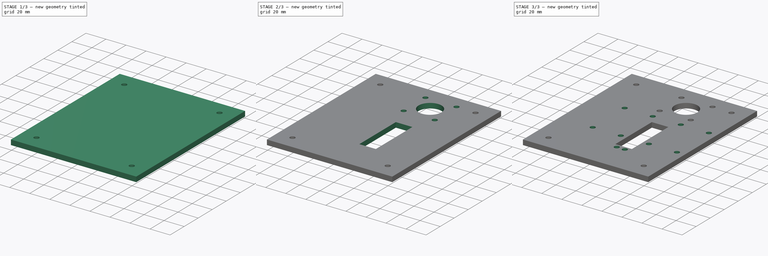
[diagram: build sequence overview — one tinted view per stage of 3, left to right]
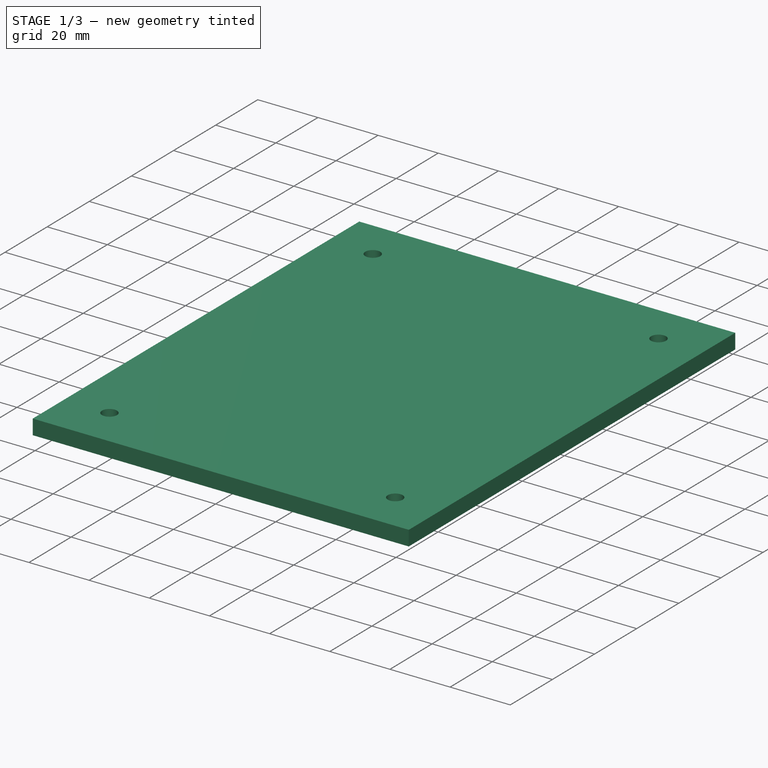
[diagram: stage 1 of 3 — iso view after this stage's code; geometry added in this stage tinted green]
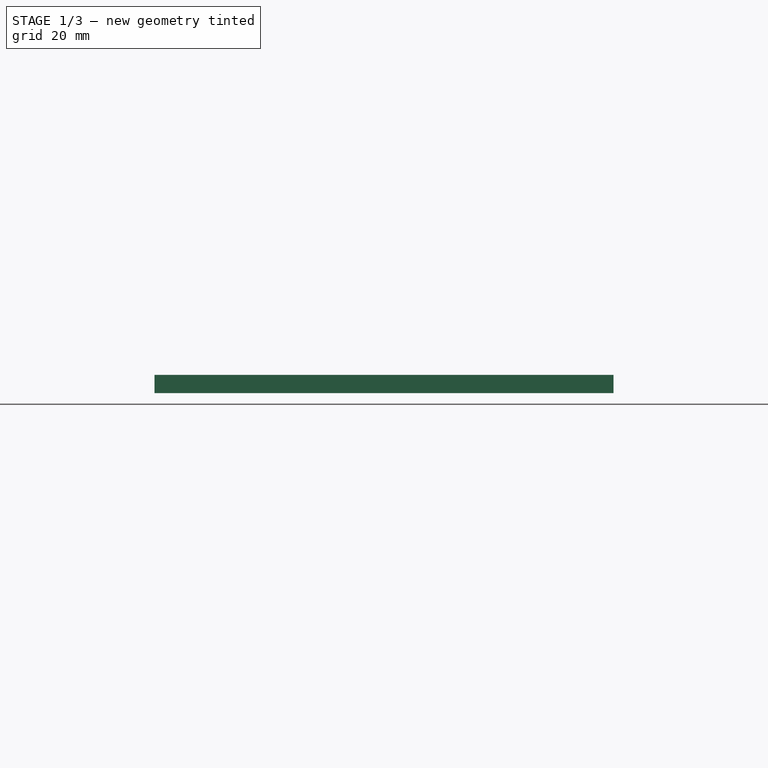
[diagram: stage 1 of 3 — front view after this stage's code; geometry added in this stage tinted green]
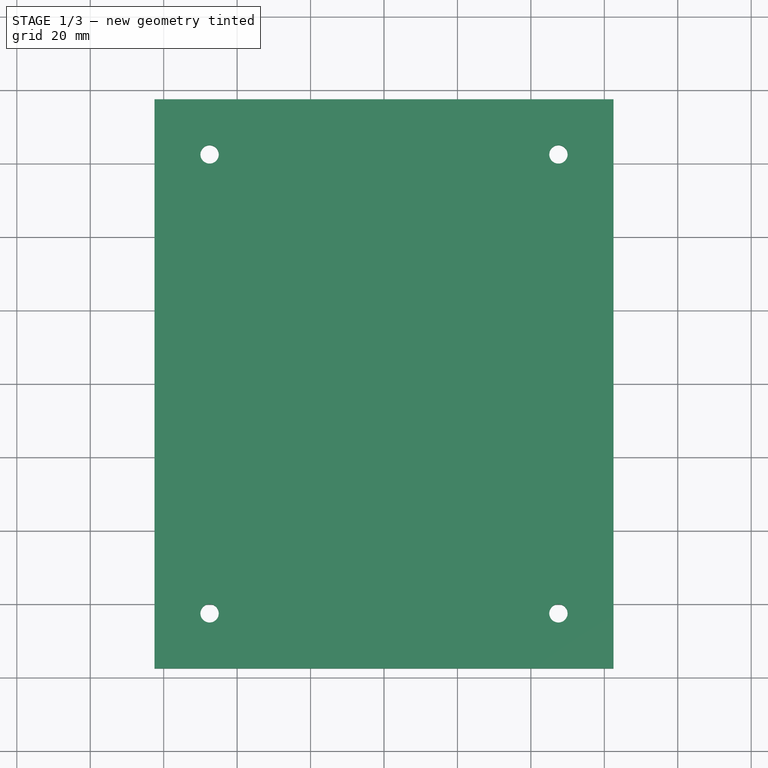
[diagram: stage 1 of 3 — top view after this stage's code; geometry added in this stage tinted green]
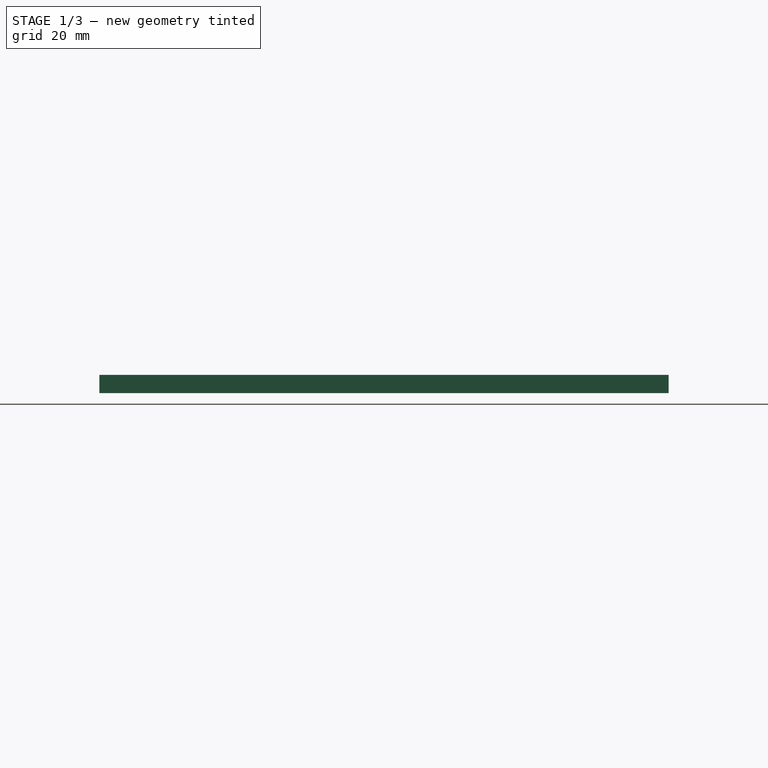
[diagram: stage 1 of 3 — right view after this stage's code; geometry added in this stage tinted green]
FCSTD DOCUMENT  (FreeCAD 0.19R24267 +148 (Git))
Label: PlateOfSupport
License: All rights reserved
LicenseURL: http://en.wikipedia.org/wiki/All_rights_reserved
objects: Sketcher::SketchObject×6, PartDesign::Pocket×5, PartDesign::Pad×1, PartDesign::Body×1
note: 19 computed .brp shape members not serialized (recipe doc carries the construction recipe); baked Part::Feature solids carry a one-line shape summary decoded from their .brp

FEATURE [Sketcher::SketchObject] Sketch
  FullyConstrained = true
  MapMode = 5
  Support = -> [XY_Plane]
  sketch-geometry (4):
    g0: LineSegment StartX=-62.5 StartY=-77.5 StartZ=0 EndX=62.5 EndY=-77.5 EndZ=0
    g1: LineSegment StartX=62.5 StartY=-77.5 StartZ=0 EndX=62.5 EndY=77.5 EndZ=0
    g2: LineSegment StartX=62.5 StartY=77.5 StartZ=0 EndX=-62.5 EndY=77.5 EndZ=0
    g3: LineSegment StartX=-62.5 StartY=77.5 StartZ=0 EndX=-62.5 EndY=-77.5 EndZ=0
  constraints (10):
    c: Coincident(g0,g1)
    c: Coincident(g1,g2)
    c: Coincident(g2,g3)
    c: Coincident(g3,g0)
    c: Horizontal(g0)
    c: Vertical(g3)
    c: Symmetric(g1,g2,g-2)
    c: Symmetric(g0,g1,g-1)
    c: Distance(g0) = 125
    c: Distance(g1) = 155
FEATURE [PartDesign::Pad] Pad
  Direction = (1,1,1)
  Length = 5
  Length2 = 100
  Profile = -> Sketch
  Refine = true
  Type = 0
FEATURE [Sketcher::SketchObject] Sketch001
  ExternalGeometry = -> [Pad]
  FullyConstrained = true
  MapMode = 5
  Placement = pos=(0,0,5) rot=(0,0,1;0rad)
  Support = -> [Pad]
  sketch-geometry (4):
    g0: Circle CenterX=-47.5 CenterY=62.5 CenterZ=0 NormalX=0 NormalY=0 NormalZ=1 AngleXU=0 Radius=2.5
    g1: Circle CenterX=47.5 CenterY=62.5 CenterZ=0 NormalX=0 NormalY=0 NormalZ=1 AngleXU=0 Radius=2.5
    g2: Circle CenterX=-47.5 CenterY=-62.5 CenterZ=0 NormalX=0 NormalY=0 NormalZ=1 AngleXU=0 Radius=2.5
    g3: Circle CenterX=47.5 CenterY=-62.5 CenterZ=0 NormalX=0 NormalY=0 NormalZ=1 AngleXU=0 Radius=2.5
  constraints (9):
    c: Equal(g0,g1)
    c: Equal(g1,g3)
    c: Equal(g3,g2)
    c: Symmetric(g0,g1,g-2)
    c: Symmetric(g1,g3,g-1)
    c: Symmetric(g3,g2,g-2)
    c: Diameter(g2) = 5
    c: DistanceY(g0,g-3) = 15
    c: DistanceX(g-3,g0) = 15
FEATURE [PartDesign::Pocket] Pocket  label="HolesForTry_Square"
  BaseFeature = -> Pad
  Length = 5
  Length2 = 100
  Profile = -> Sketch001
  Refine = true
  Type = 1
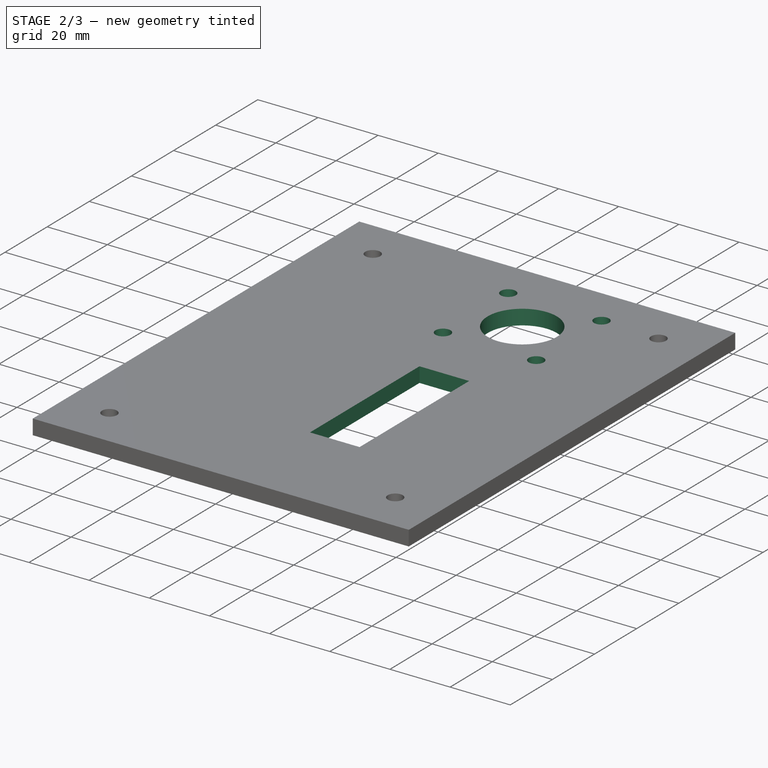
[diagram: stage 2 of 3 — iso view after this stage's code; geometry added in this stage tinted green]
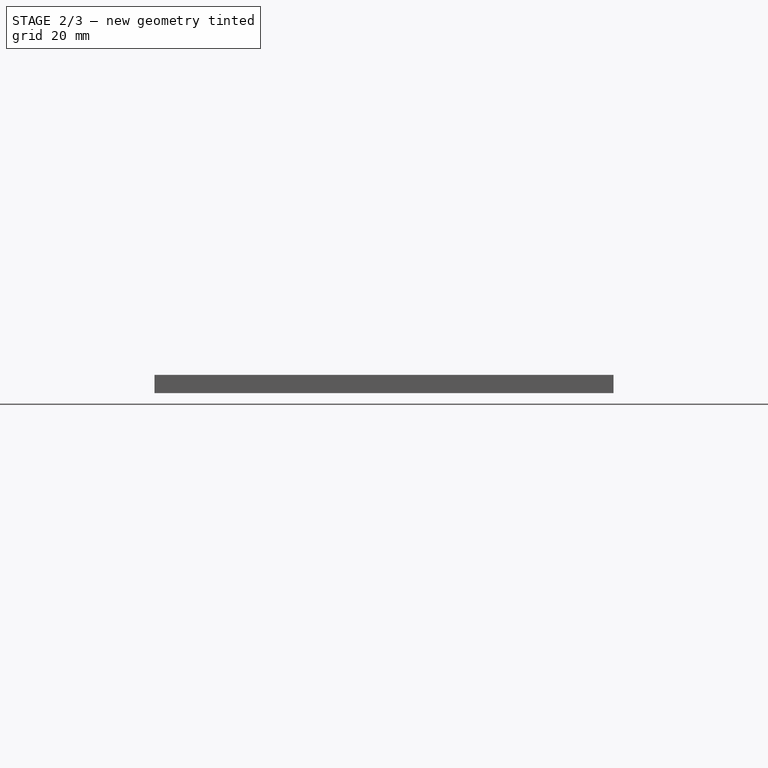
[diagram: stage 2 of 3 — front view after this stage's code; geometry added in this stage tinted green]
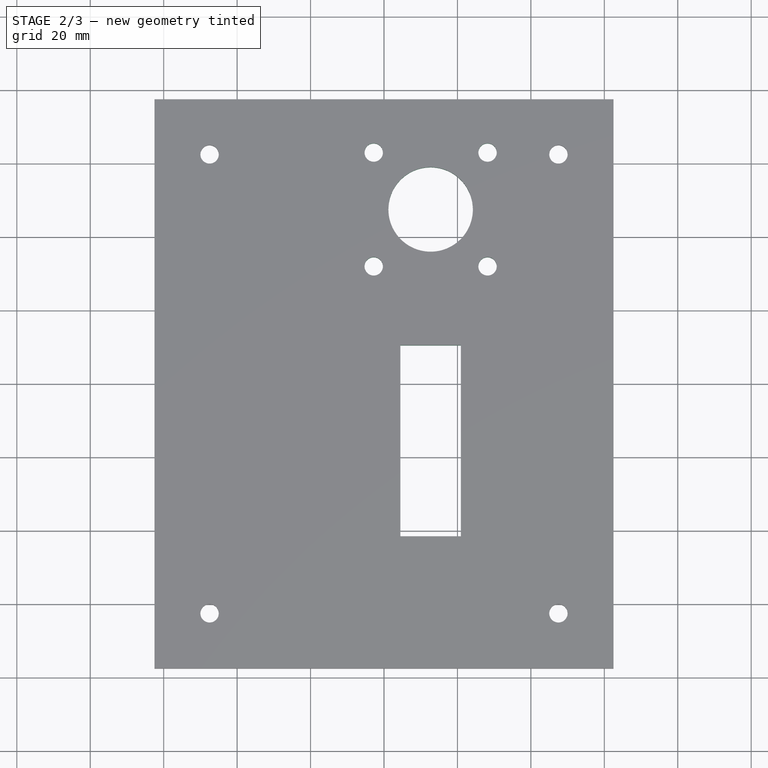
[diagram: stage 2 of 3 — top view after this stage's code; geometry added in this stage tinted green]
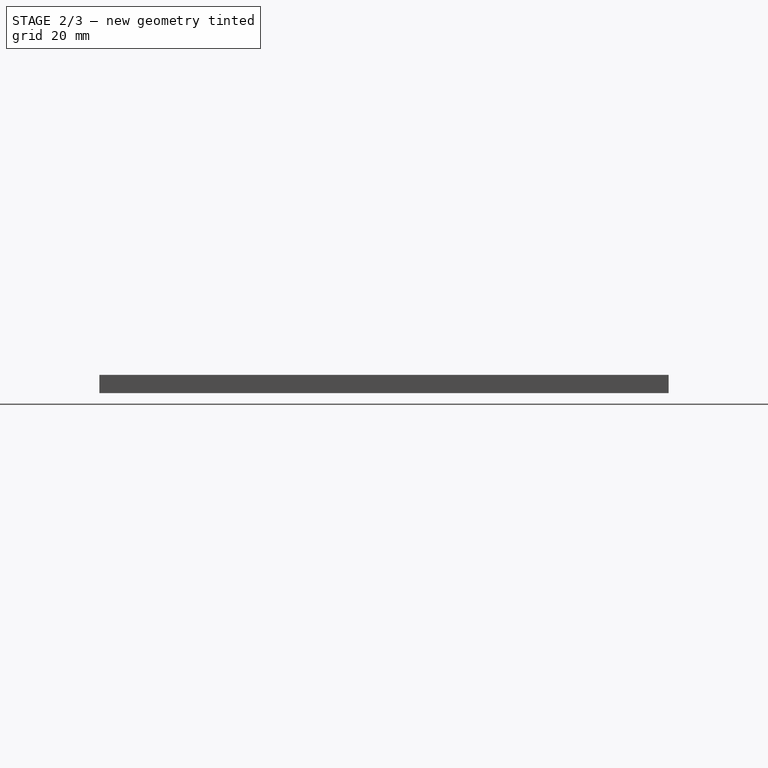
[diagram: stage 2 of 3 — right view after this stage's code; geometry added in this stage tinted green]
FEATURE [Sketcher::SketchObject] Sketch002
  ExternalGeometry = -> [Pocket]
  FullyConstrained = true
  MapMode = 5
  Placement = pos=(0,0,5) rot=(0,0,1;0rad)
  Support = -> [Pocket]
  sketch-geometry (5):
    g0: LineSegment StartX=4.45 StartY=-41.5 StartZ=0 EndX=20.95 EndY=-41.5 EndZ=0
    g1: LineSegment StartX=20.95 StartY=-41.5 StartZ=0 EndX=20.95 EndY=10.5 EndZ=0
    g2: LineSegment StartX=20.95 StartY=10.5 StartZ=0 EndX=4.45 EndY=10.5 EndZ=0
    g3: LineSegment StartX=4.45 StartY=10.5 StartZ=0 EndX=4.45 EndY=-41.5 EndZ=0
    g4: LineSegment StartX=12.7 StartY=10.5 StartZ=0 EndX=12.7 EndY=-41.5 EndZ=0
  constraints (15):
    c: Coincident(g0,g1)
    c: Coincident(g1,g2)
    c: Coincident(g2,g3)
    c: Coincident(g3,g0)
    c: Horizontal(g0)
    c: Horizontal(g2)
    c: Vertical(g1)
    c: Vertical(g3)
    c: PointOnObject(g4,g2)
    c: PointOnObject(g4,g0)
    c: Symmetric(g1,g2,g4)
    c: Distance(g1) = 52
    c: Distance(g2) = 16.5
    c: DistanceX(g4,g-3) = 49.8
    c: DistanceY(g2,g-4) = 67
FEATURE [PartDesign::Pocket] Pocket001  label="PocketForCutting_Blade"
  BaseFeature = -> Pocket
  Length = 5
  Length2 = 100
  Profile = -> Sketch002
  Refine = true
  Type = 1
FEATURE [Sketcher::SketchObject] Sketch003
  ExternalGeometry = -> [Pocket001]
  FullyConstrained = true
  MapMode = 5
  Placement = pos=(0,0,5) rot=(0,0,1;0rad)
  Support = -> [Pocket001]
  sketch-geometry (7):
    g0: Circle CenterX=12.7 CenterY=47.5 CenterZ=0 NormalX=0 NormalY=0 NormalZ=1 AngleXU=0 Radius=11.5
    g1: LineSegment StartX=12.7 StartY=59 StartZ=0 EndX=12.7 EndY=36 EndZ=0
    g2: LineSegment StartX=1.2 StartY=47.5 StartZ=0 EndX=24.2 EndY=47.5 EndZ=0
    g3: Circle CenterX=-2.8 CenterY=63 CenterZ=0 NormalX=0 NormalY=0 NormalZ=1 AngleXU=0 Radius=2.5
    g4: Circle CenterX=28.2 CenterY=63 CenterZ=0 NormalX=0 NormalY=0 NormalZ=1 AngleXU=0 Radius=2.5
    g5: Circle CenterX=28.2 CenterY=32 CenterZ=0 NormalX=0 NormalY=0 NormalZ=1 AngleXU=0 Radius=2.5
    g6: Circle CenterX=-2.8 CenterY=32 CenterZ=0 NormalX=0 NormalY=0 NormalZ=1 AngleXU=0 Radius=2.5
  constraints (19):
    c: PointOnObject(g1,g0)
    c: PointOnObject(g1,g0)
    c: PointOnObject(g0,g1)
    c: Symmetric(g-4,g-3,g1)
    c: PointOnObject(g2,g0)
    c: PointOnObject(g2,g0)
    c: Horizontal(g2)
    c: PointOnObject(g0,g2)
    c: Diameter(g0) = 23
    c: DistanceY(g-3,g0) = 37
    c: Equal(g5,g6)
    c: Equal(g6,g3)
    c: Equal(g3,g4)
    c: Diameter(g3) = 5
    c: Symmetric(g4,g3,g1)
    c: Symmetric(g4,g5,g2)
    c: Symmetric(g5,g6,g1)
    c: DistanceY(g2,g4) = 15.5
    c: DistanceX(g1,g4) = 15.5
FEATURE [PartDesign::Pocket] Pocket002  label="HolesForMotor_Cam"
  BaseFeature = -> Pocket001
  Length = 5
  Length2 = 100
  Profile = -> Sketch003
  Refine = true
  Type = 1
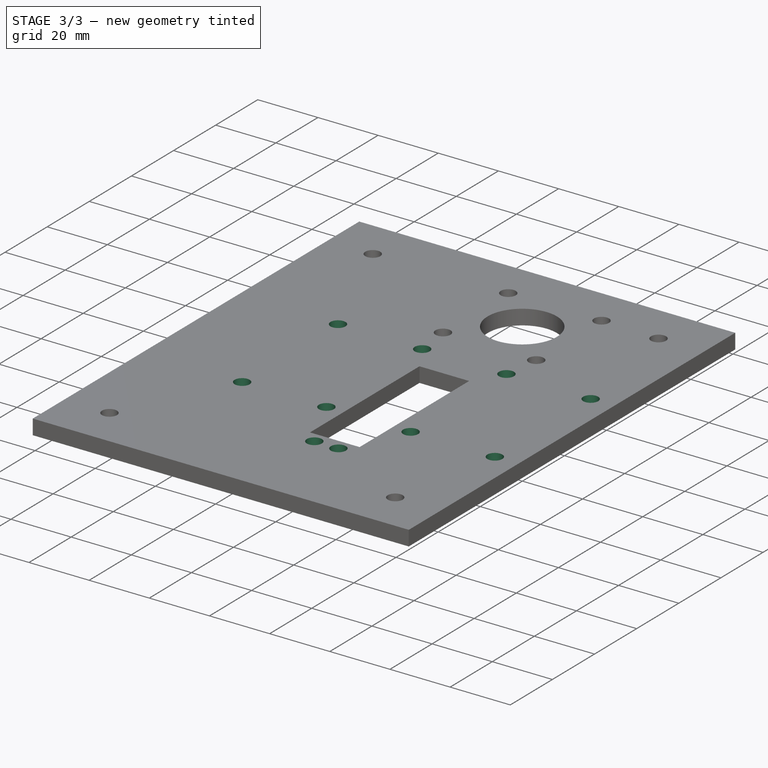
[diagram: stage 3 of 3 — iso view after this stage's code; geometry added in this stage tinted green]
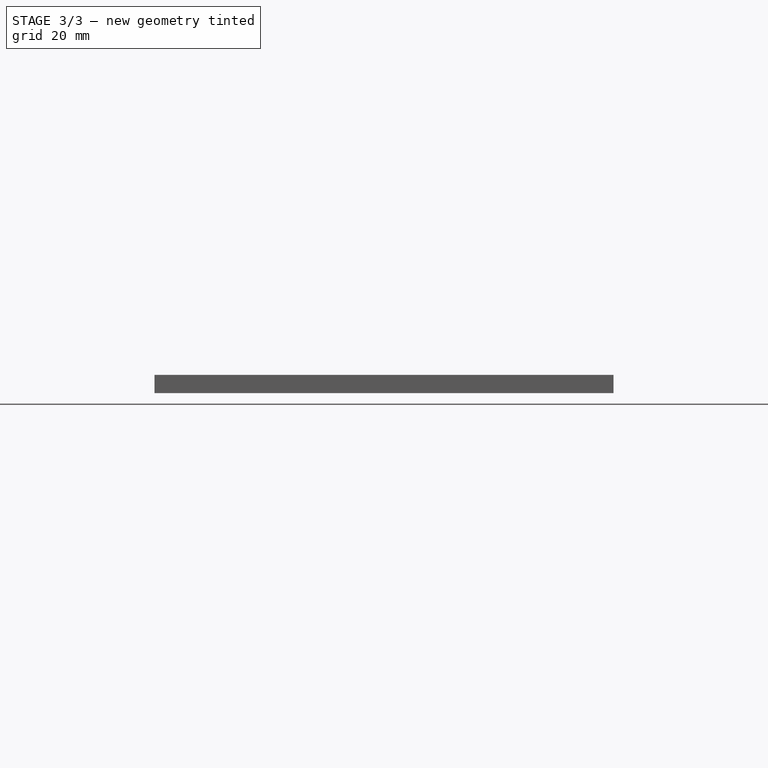
[diagram: stage 3 of 3 — front view after this stage's code; geometry added in this stage tinted green]
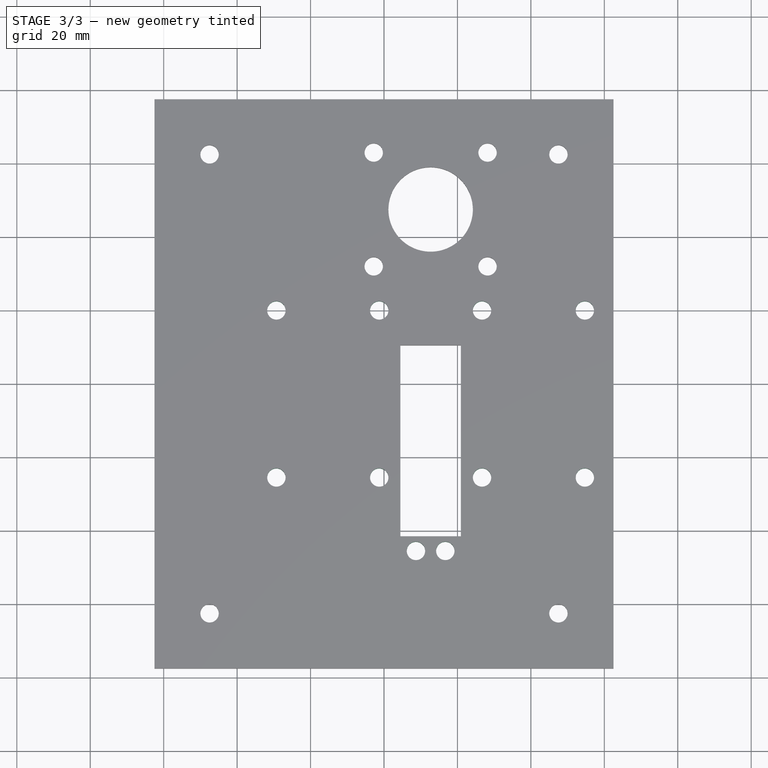
[diagram: stage 3 of 3 — top view after this stage's code; geometry added in this stage tinted green]
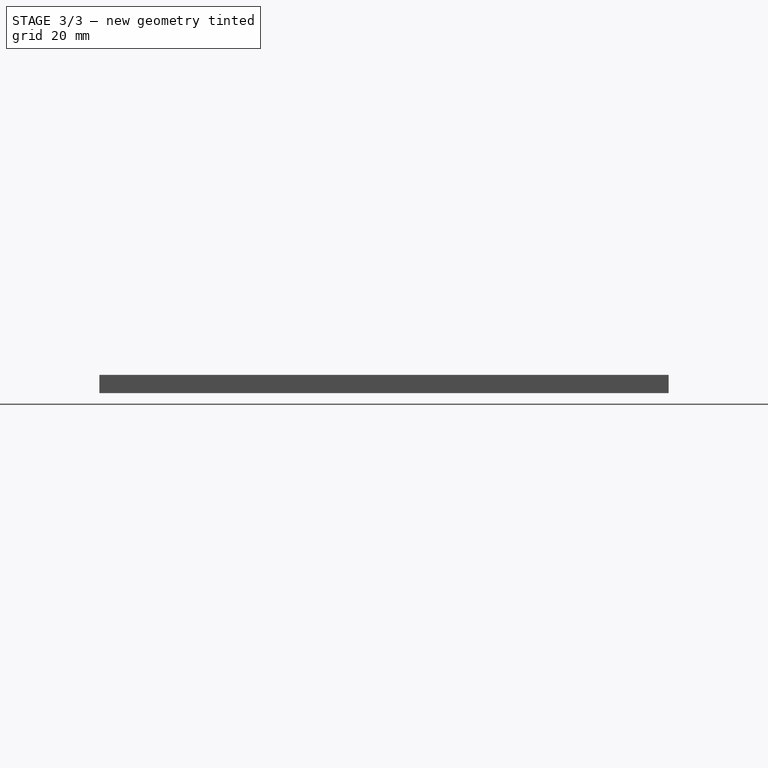
[diagram: stage 3 of 3 — right view after this stage's code; geometry added in this stage tinted green]
FEATURE [Sketcher::SketchObject] Sketch004
  ExternalGeometry = -> [Pocket002]
  FullyConstrained = false
  MapMode = 5
  Placement = pos=(0,0,5) rot=(0,0,1;0rad)
  Support = -> [Pocket002]
  sketch-geometry (3):
    g0: Circle CenterX=8.7 CenterY=-45.5 CenterZ=0 NormalX=0 NormalY=0 NormalZ=1 AngleXU=0 Radius=2.5
    g1: Circle CenterX=16.7 CenterY=-45.5 CenterZ=0 NormalX=0 NormalY=0 NormalZ=1 AngleXU=0 Radius=2.5
    g2: LineSegment StartX=12.7 StartY=-70.9763 StartZ=0 EndX=12.7 EndY=-8.3691 EndZ=0
  constraints (6):
    c: Symmetric(g-3,g-4,g2)
    c: Symmetric(g1,g0,g2)
    c: Diameter(g0) = 5
    c: Equal(g0,g1)
    c: DistanceX(g0,g2) = 4
    c: DistanceY(g0,g-3) = 4
FEATURE [PartDesign::Pocket] Pocket003  label="HolesForBlad"
  BaseFeature = -> Pocket002
  Length = 5
  Length2 = 100
  Profile = -> Sketch004
  Refine = true
  Type = 1
FEATURE [Sketcher::SketchObject] Sketch005
  ExternalGeometry = -> [Pocket003]
  FullyConstrained = false
  MapMode = 5
  Placement = pos=(0,0,5) rot=(0,0,1;0rad)
  Support = -> [Pocket003]
  sketch-geometry (11):
    g0: LineSegment StartX=40.7 StartY=14.3344 StartZ=0 EndX=40.7 EndY=-42.1045 EndZ=0
    g1: Circle CenterX=26.7 CenterY=20 CenterZ=0 NormalX=0 NormalY=0 NormalZ=1 AngleXU=0 Radius=2.5
    g2: Circle CenterX=54.7 CenterY=20 CenterZ=0 NormalX=0 NormalY=0 NormalZ=1 AngleXU=0 Radius=2.5
    g3: Circle CenterX=26.7 CenterY=-25.5 CenterZ=0 NormalX=0 NormalY=0 NormalZ=1 AngleXU=0 Radius=2.5
    g4: Circle CenterX=54.7 CenterY=-25.5 CenterZ=0 NormalX=0 NormalY=0 NormalZ=1 AngleXU=0 Radius=2.5
    g5: LineSegment StartX=12.7 StartY=47.5 StartZ=0 EndX=12.7 EndY=-40.0256 EndZ=0
    g6: Circle CenterX=-1.3 CenterY=20 CenterZ=0 NormalX=0 NormalY=0 NormalZ=1 AngleXU=0 Radius=2.5
    g7: Circle CenterX=-29.3 CenterY=20 CenterZ=0 NormalX=0 NormalY=0 NormalZ=1 AngleXU=0 Radius=2.5
    g8: Circle CenterX=-29.3 CenterY=-25.5 CenterZ=0 NormalX=0 NormalY=0 NormalZ=1 AngleXU=0 Radius=2.5
    g9: Circle CenterX=-1.3 CenterY=-25.5 CenterZ=0 NormalX=0 NormalY=0 NormalZ=1 AngleXU=0 Radius=2.5
    g10: LineSegment StartX=-15.3 StartY=14.3344 StartZ=0 EndX=-15.3 EndY=-42.1045 EndZ=0
  constraints (26):
    c: Vertical(g0)
    c: Equal(g3,g1)
    c: Equal(g1,g2)
    c: Equal(g2,g4)
    c: Symmetric(g1,g2,g0)
    c: Symmetric(g4,g3,g0)
    c: Vertical(g4,g2)
    c: DistanceX(g1,g0) = 14
    c: Diameter(g4) = 5
    c: DistanceX(g-3,g0) = 28
    c: DistanceY(g1,g-3) = 27.5
    c: DistanceY(g4,g-3) = 73
    c: Coincident(g5,g-3)
    c: Vertical(g5)
    c: Equal(g9,g6)
    c: Equal(g6,g7)
    c: Equal(g7,g8)
    c: Diameter(g8) = 5
    c: Vertical(g10)
    c: Symmetric(g10,g0,g5)
    c: Symmetric(g6,g7,g10)
    c: Symmetric(g9,g8,g10)
    c: Horizontal(g6,g1)
    c: Horizontal(g9,g3)
    c: Vertical(g9,g6)
    c: DistanceX(g7,g10) = 14
FEATURE [PartDesign::Pocket] Pocket004  label="HolesForGuide"
  BaseFeature = -> Pocket003
  Length = 5
  Length2 = 100
  Profile = -> Sketch005
  Refine = true
  Type = 1
FEATURE [PartDesign::Body] Body
  Group = -> [Sketch,Pad,Sketch001,Pocket,Sketch002,Pocket001,Sketch003,Pocket002,Sketch004,Pocket003,Sketch005,Pocket004]
  Origin = -> Origin
  Tip = -> Pocket004
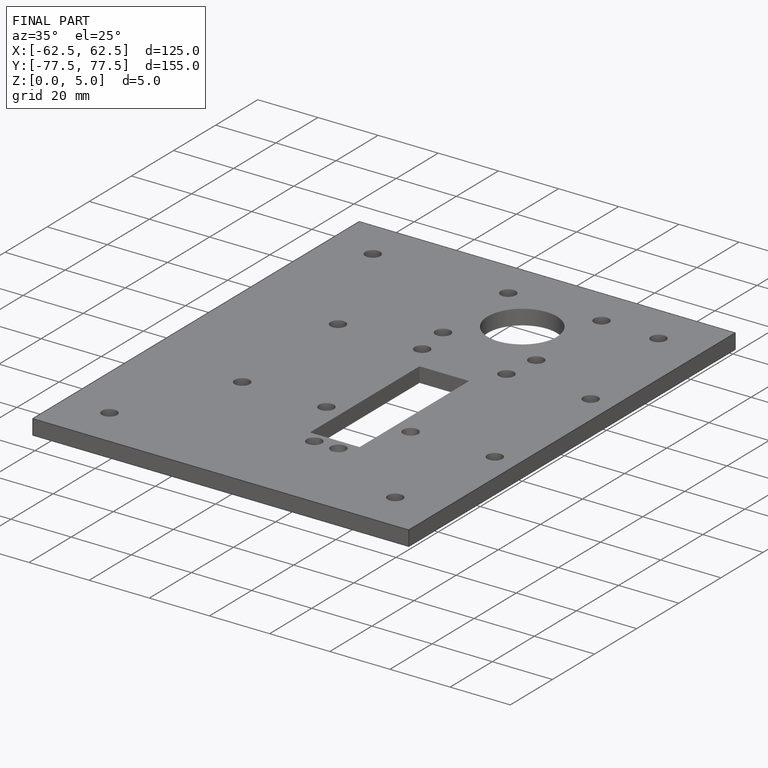
[diagram: finished part — iso view with bounding-box wireframe]
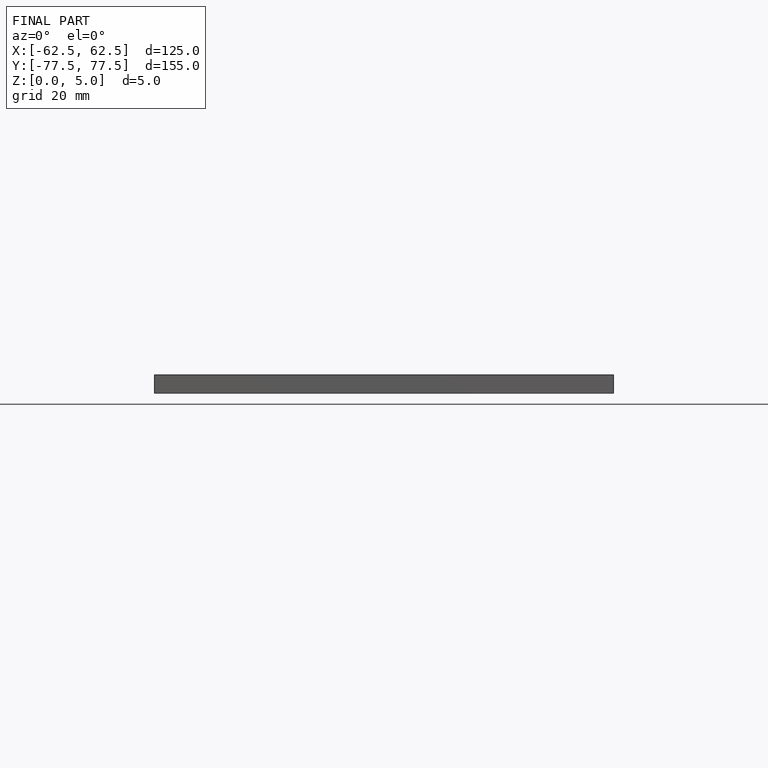
[diagram: finished part — front view with bounding-box wireframe]
